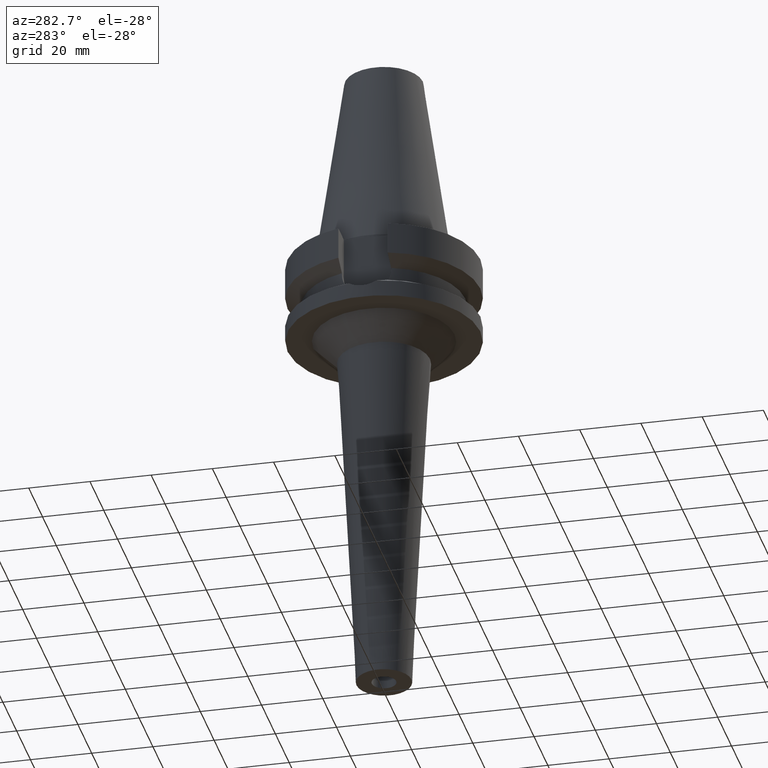
[diagram: clean part render]
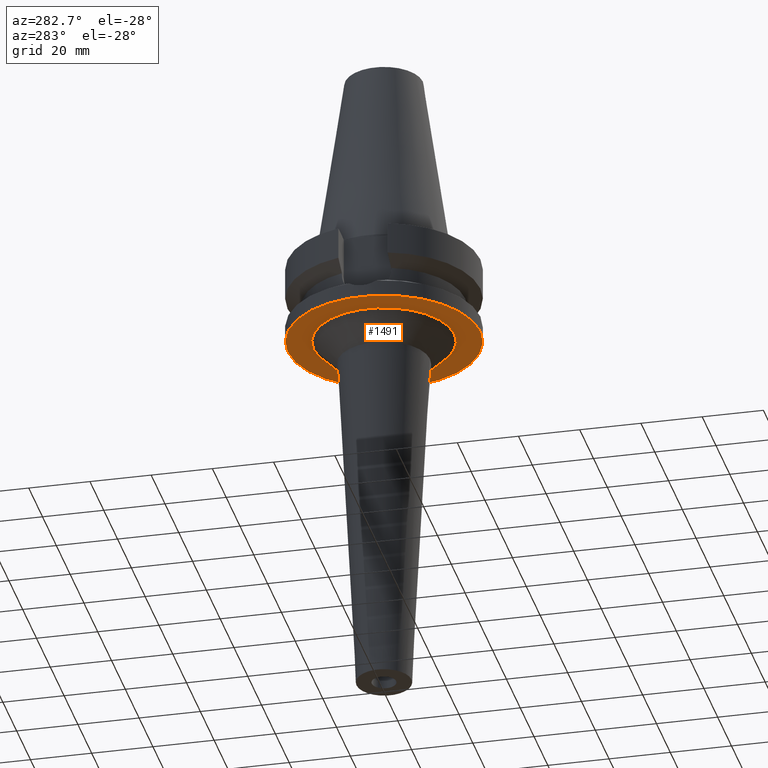
[diagram: same view with one face highlighted and labeled with its STEP entity id]
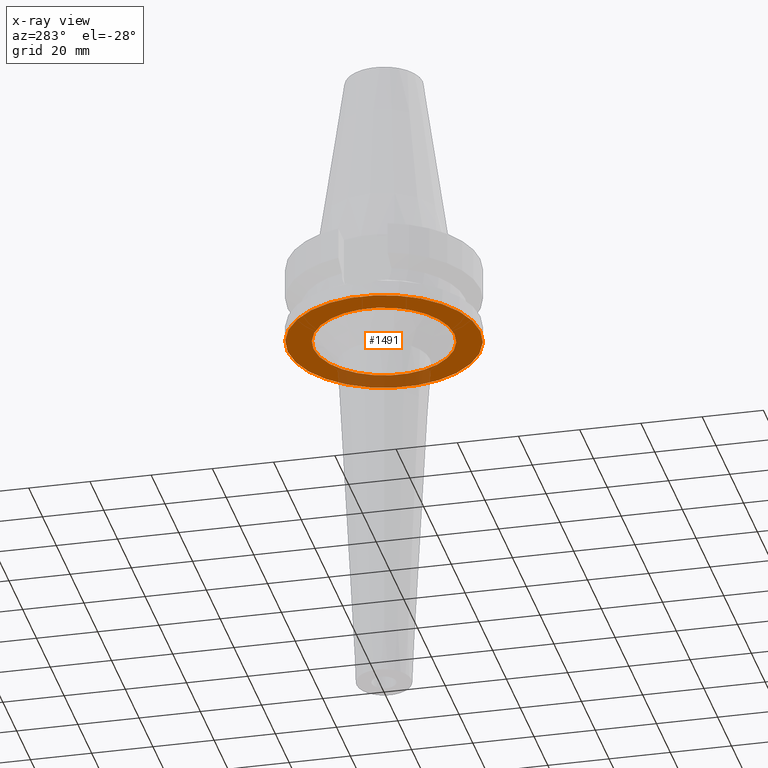
[diagram: x-ray of the same camera — body ghosted, the highlighted face saturated]
A machine part, auxiliary view. The second image highlights one B-rep face of the part: STEP entity #1491.
The next image is the same camera in x-ray: the body ghosted, the highlighted face saturated — about 18% of this face is hidden behind the body in this view.
In plain terms, the highlighted planar face has unit normal (0, 0, -1).
Its self-contained STEP definition (entity closure, byte-faithful):
#622=CARTESIAN_POINT('',(0.E0,2.157460266058E-14,-2.7E1));
#623=DIRECTION('',(0.E0,0.E0,1.E0));
#624=DIRECTION('',(0.E0,-1.E0,0.E0));
#625=AXIS2_PLACEMENT_3D('',#622,#623,#624);
#630=CARTESIAN_POINT('',(0.E0,2.157460266058E-14,-2.7E1));
#631=DIRECTION('',(0.E0,0.E0,1.E0));
#632=DIRECTION('',(0.E0,1.E0,0.E0));
#633=AXIS2_PLACEMENT_3D('',#630,#631,#632);
#638=CARTESIAN_POINT('',(0.E0,0.E0,-2.7E1));
#639=DIRECTION('',(0.E0,0.E0,-1.E0));
#640=DIRECTION('',(0.E0,-1.E0,0.E0));
#641=AXIS2_PLACEMENT_3D('',#638,#639,#640);
#646=CARTESIAN_POINT('',(0.E0,0.E0,-2.7E1));
#647=DIRECTION('',(0.E0,0.E0,-1.E0));
#648=DIRECTION('',(0.E0,1.E0,0.E0));
#649=AXIS2_PLACEMENT_3D('',#646,#647,#648);
#960=CARTESIAN_POINT('',(0.E0,2.302689461755E1,-2.7E1));
#961=VERTEX_POINT('',#960);
#962=CARTESIAN_POINT('',(0.E0,-2.302689461755E1,-2.7E1));
#963=VERTEX_POINT('',#962);
#964=CARTESIAN_POINT('',(0.E0,-3.15E1,-2.7E1));
#965=CARTESIAN_POINT('',(0.E0,3.15E1,-2.7E1));
#966=VERTEX_POINT('',#964);
#967=VERTEX_POINT('',#965);
#1476=CARTESIAN_POINT('',(0.E0,0.E0,-2.7E1));
#1477=DIRECTION('',(0.E0,0.E0,-1.E0));
#1478=DIRECTION('',(0.E0,-1.E0,0.E0));
#1479=AXIS2_PLACEMENT_3D('',#1476,#1477,#1478);
#1480=PLANE('',#1479);
#1481=ORIENTED_EDGE('',*,*,#1438,.T.);
#1482=ORIENTED_EDGE('',*,*,#1469,.T.);
#1483=EDGE_LOOP('',(#1481,#1482));
#1484=FACE_OUTER_BOUND('',#1483,.F.);
#1486=ORIENTED_EDGE('',*,*,#1485,.T.);
#1488=ORIENTED_EDGE('',*,*,#1487,.T.);
#1489=EDGE_LOOP('',(#1486,#1488));
#1490=FACE_BOUND('',#1489,.F.);
#626=CIRCLE('',#625,3.15E1);
#634=CIRCLE('',#633,3.15E1);
#642=CIRCLE('',#641,2.302689461755E1);
#650=CIRCLE('',#649,2.302689461755E1);
#1438=EDGE_CURVE('',#966,#967,#626,.T.);
#1469=EDGE_CURVE('',#967,#966,#634,.T.);
#1485=EDGE_CURVE('',#963,#961,#642,.T.);
#1487=EDGE_CURVE('',#961,#963,#650,.T.);
#1491=ADVANCED_FACE('',(#1484,#1490),#1480,.T.);